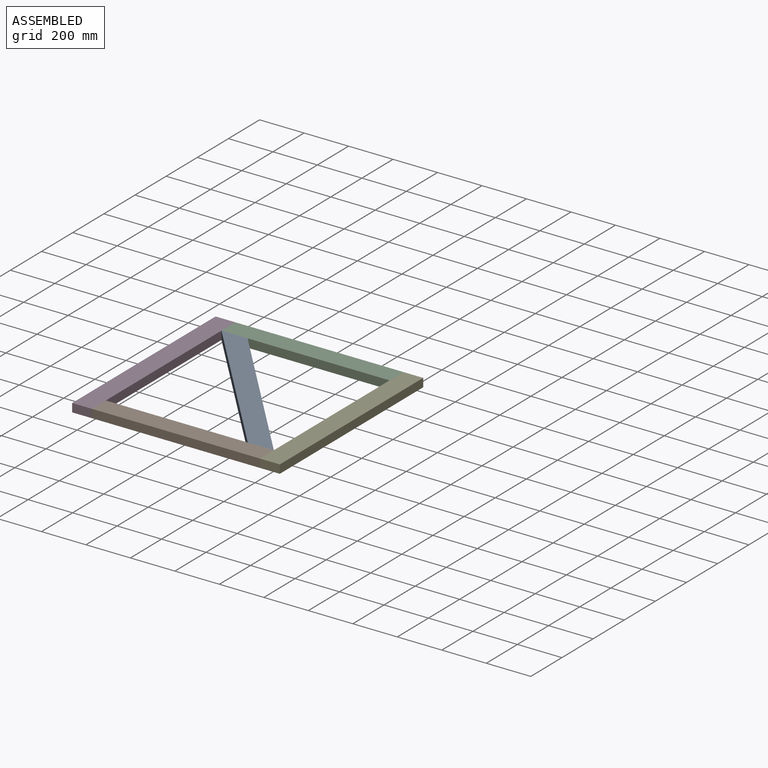
[diagram: assembled view]
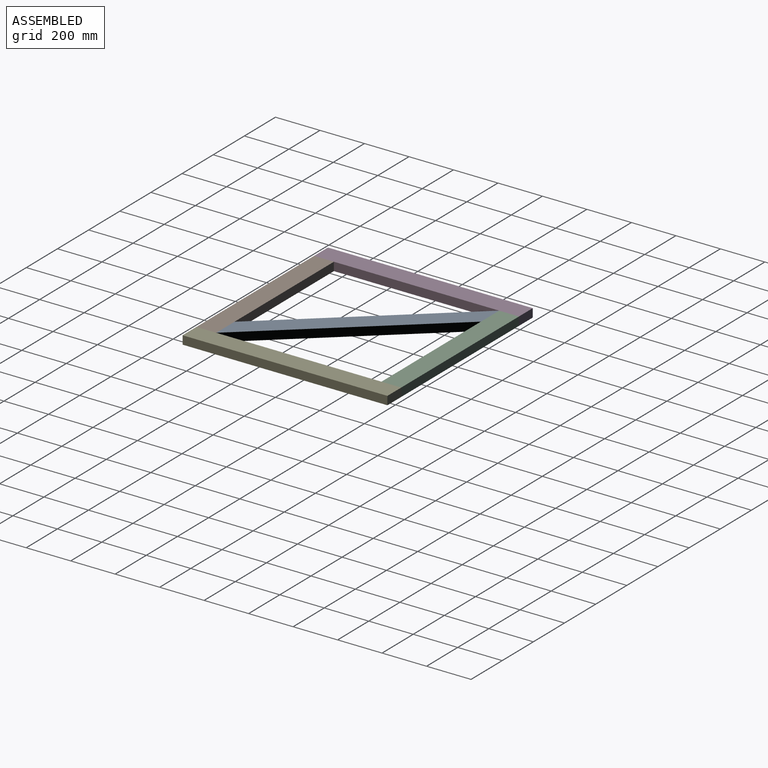
[diagram: assembled view, second angle]
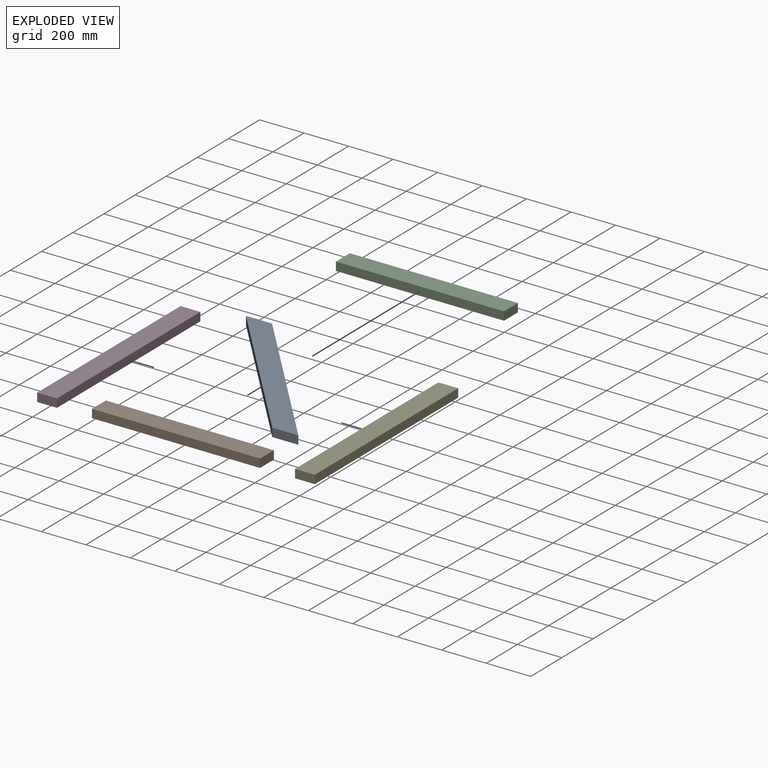
[diagram: exploded view]
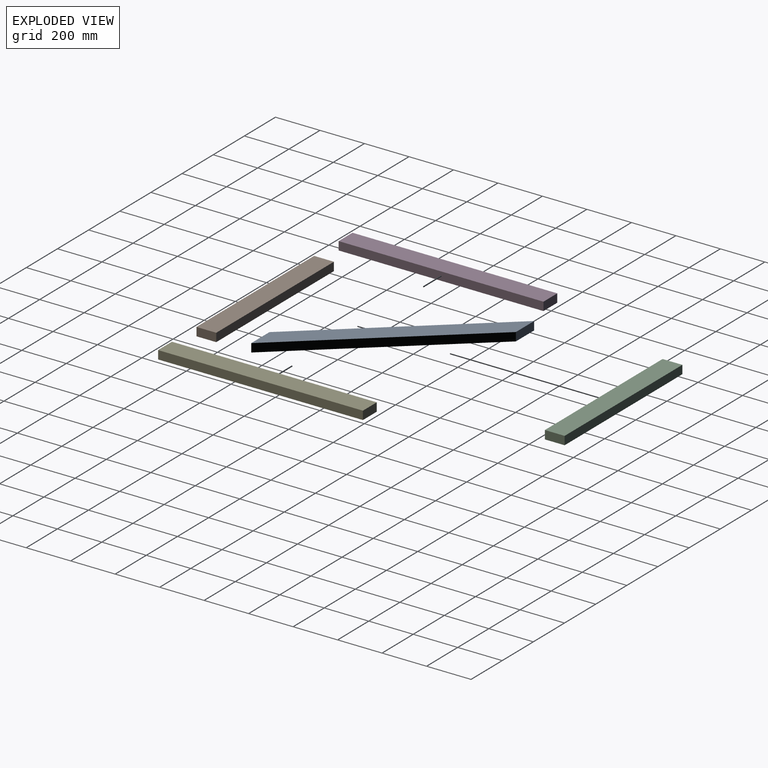
[diagram: exploded view, second angle]
ASSEMBLY  parts=5 mates=4
PART A: 6 faces, bbox 743x38.1x755.7 mm
  f0: plane 742.95x638.44mm, normal (0.65,0,0.76), area 37322mm2, adj f1,f3,f4,f5
  f1: plane 117.21x38.1mm, normal (-1,0,0), area 4465.9mm2, adj f0,f2,f4,f5
  f2: plane 742.95x638.44mm, normal (-0.65,0,-0.76), area 37322mm2, adj f1,f3,f4,f5
  f3: plane 117.21x38.1mm, normal (1,0,0), area 4465.9mm2, adj f0,f2,f4,f5
  f4: plane 755.65x742.95mm, normal (0,-1,0), area 87084.6mm2, adj f0,f1,f2,f3
  f5: plane 755.65x742.95mm, normal (0,1,0), area 87084.6mm2, adj f0,f1,f2,f3
PART B: 6 faces, bbox 88.9x755.7x38.1 mm
  f0: plane 755.65x38.1mm, normal (-1,0,0), area 28790.3mm2, adj f1,f3,f4,f5
  f1: plane 755.65x88.9mm, normal (0,0,-1), area 67177.3mm2, adj f0,f2,f4,f5
  f2: plane 755.65x38.1mm, normal (1,0,0), area 28790.3mm2, adj f1,f3,f4,f5
  f3: plane 755.65x88.9mm, normal (0,0,1), area 67177.3mm2, adj f0,f2,f4,f5
  f4: plane 88.9x38.1mm, normal (0,-1,0), area 3387.1mm2, adj f0,f1,f2,f3
  f5: plane 88.9x38.1mm, normal (0,1,0), area 3387.1mm2, adj f0,f1,f2,f3
PART C: same geometry as B
PART D: 6 faces, bbox 88.9x920.8x38.1 mm
  f0: plane 920.75x88.9mm, normal (0,0,1), area 81854.7mm2, adj f1,f3,f4,f5
  f1: plane 920.75x38.1mm, normal (-1,0,0), area 35080.6mm2, adj f0,f2,f4,f5
  f2: plane 920.75x88.9mm, normal (0,0,-1), area 81854.7mm2, adj f1,f3,f4,f5
  f3: plane 920.75x38.1mm, normal (1,0,0), area 35080.6mm2, adj f0,f2,f4,f5
  f4: plane 88.9x38.1mm, normal (0,-1,0), area 3387.1mm2, adj f0,f1,f2,f3
  f5: plane 88.9x38.1mm, normal (0,1,0), area 3387.1mm2, adj f0,f1,f2,f3
PART E: same geometry as D
PLACE A rot(axis=(0.58,-0.58,-0.58),120deg) t=(-24.15,719.66,-16.99)mm
PLACE B rot(axis=(0,0,-1),90deg) t=(365.82,-469.11,149.3)mm
PLACE C rot(axis=(0,0,-1),90deg) t=(365.82,362.74,149.3)mm
PLACE D t=(-487.47,201.99,-142.62)mm
PLACE E rot(axis=(0,1,0),180deg) t=(463.47,201.99,70.53)mm
MATE fastened B.f4 <-> D.f3  axis (-1,0,0) through (-389.83,-718.76,-16.99)mm
MATE fastened C.f4 <-> D.f3  axis (1,0,0) through (-389.83,201.99,-16.99)mm
MATE fastened A.f1 <-> C.f2  axis (0,1,0) through (-389.83,113.09,-55.09)mm
MATE fastened E.f3 <-> B.f5  axis (-1,0,0) through (365.82,-718.76,-16.99)mm
